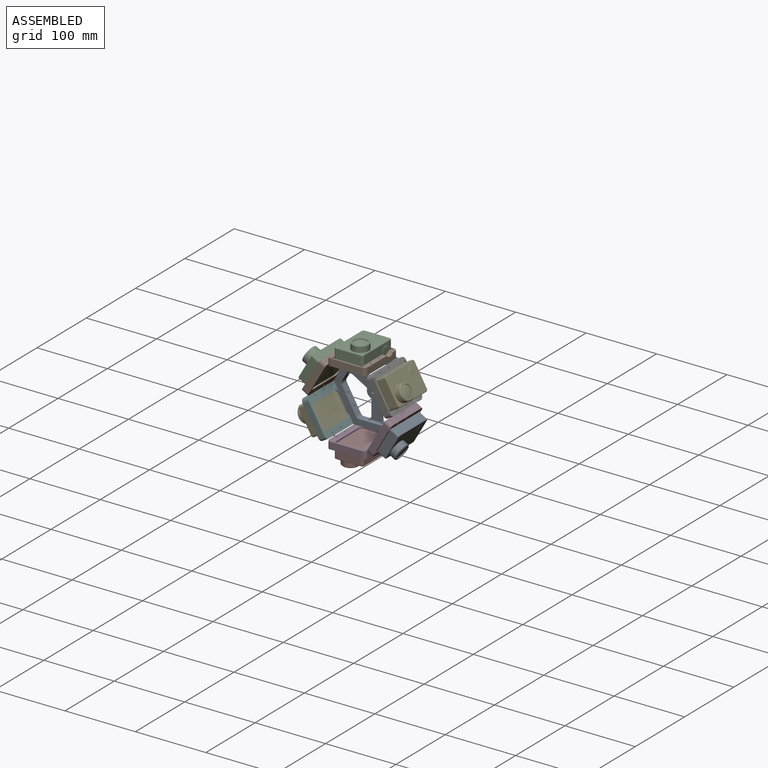
[diagram: assembled view]
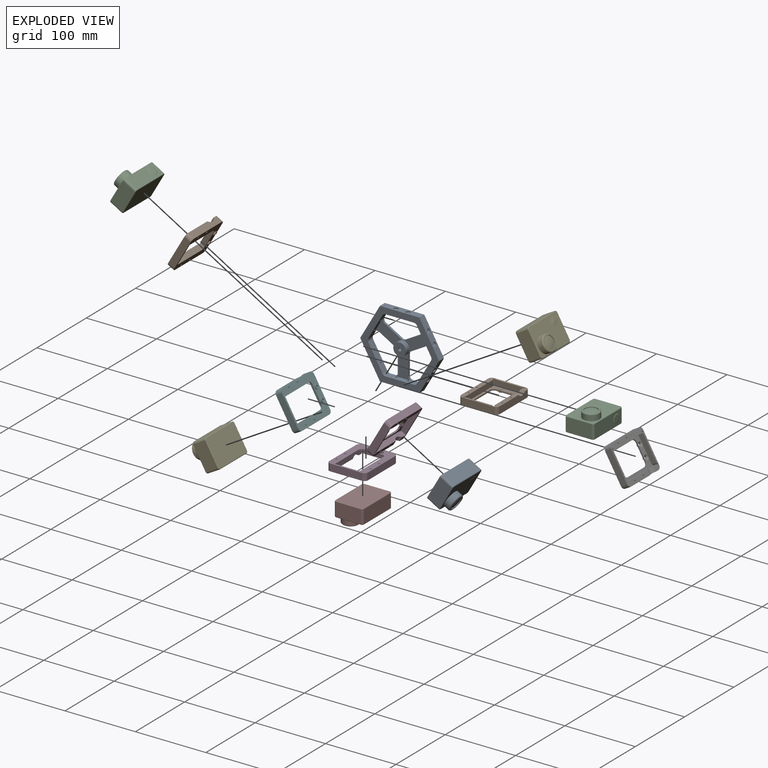
[diagram: exploded view]
GUIDED TOUR — MATED ASSEMBLY (Onshape document 9c38cecef5e9b53f635a4dc5, AutoMate assembly 9c38cecef5e9b53f635a4dc5_227ad06c4d0394dedd1eaec3_ae85a5137a5b2e4cc9e6681c_default)

This assembly has 13 components, labeled P0..P12 below (a component is one placed occurrence of a part; the same part can appear more than once), held together by 12 mates. A mate is a constraint between two components; its type names the relative motion it leaves free:
  FASTENED — locks the two components together rigidly (no relative motion).
Axis/direction vectors are unit vectors and 'through' points are millimeter coordinates, both in the assembly's world frame.

MATES
  1. FASTENED "Fastened 11": P4 <-> P6, direction (-0.866, 0.000, -0.500) through (129.96, 152.46, 191.49) mm
  2. FASTENED "Fastened 8": P10 <-> P1, direction (0.866, 0.000, -0.500) through (42.50, 152.46, 191.49) mm
  3. FASTENED "Fastened 9": P7 <-> P11, direction (0.000, 0.000, 1.000) through (86.23, 152.46, 115.75) mm
  4. FASTENED "Fastened 3": P5 <-> P8, direction (-0.500, 0.000, 0.866) through (44.23, 154.96, 142.00) mm
  5. FASTENED "Fastened 1": P11 <-> P8, direction (-1.000, 0.000, 0.000) through (86.23, 154.96, 117.75) mm
  6. FASTENED "Fastened 10": P0 <-> P3, direction (-0.866, 0.000, 0.500) through (129.96, 152.46, 141.00) mm
  7. FASTENED "Fastened 6": P9 <-> P8, direction (1.000, 0.000, 0.000) through (86.23, 144.96, 214.74) mm
  8. FASTENED "Fastened 5": P6 <-> P8, direction (0.500, 0.000, -0.866) through (128.23, 154.96, 190.49) mm
  9. FASTENED "Fastened 12": P2 <-> P9, direction (-1.000, 0.000, 0.000) through (86.23, 152.46, 216.74) mm
  10. FASTENED "Fastened 2": P3 <-> P8, direction (-0.500, 0.000, -0.866) through (128.23, 154.96, 142.00) mm
  11. FASTENED "Fastened 4": P1 <-> P8, direction (0.500, 0.000, 0.866) through (44.23, 154.96, 190.49) mm
  12. FASTENED "Fastened 7": P12 <-> P5, direction (0.866, 0.000, 0.500) through (42.50, 152.46, 141.00) mm

ASSEMBLY ORDER
  1. P3 — the base component [order verified]
  2. P8 [order verified]
  3. P6 [order verified]
  4. P0 [order verified]
  5. P4 [order verified]
  6. P9 [order verified]
  7. P11 [order verified]
  8. P1 [order verified]
  9. P5 [order verified]
  10. P10 [order verified]
  11. P12 [order verified]
  12. P2 [order verified]
  13. P7 [order verified]
(P1, P5, P6, P9, P11 verified with a relaxed clearance tolerance: the source model stores slight part interference there.)
Order-tag legend:
  [order verified] — this step's position reverses a verified removal order: the component was checked to insert without passing through the ones already placed.

Of the 13 components, 7 carry the full construction recipe — the FeatureScript program that regenerates the part's solid from scratch; the rest are supplied as boundary geometry only.
Because this assembly has more than 12 components, the tour below covers the 12 most significant ones individually (every recipe-attached component first, then the largest by part volume), in assembly order; the remaining 1 are summarized together in a grouped section at the end.
Each toured component is shown spotlighted twice — in the assembled view, then in the exploded view, where a leader line traces a displaced component back to its assembled socket (saturated green if recipe-attached, orange if geometry-only; every other component desaturated gray) — followed by its recipe or geometry summary and the mates that hold it.
NOTE — document 2 of 2 of this assembly tour. The two overview renders and the header above are repeated from document 1; the component sections below continue where the previous document stopped.
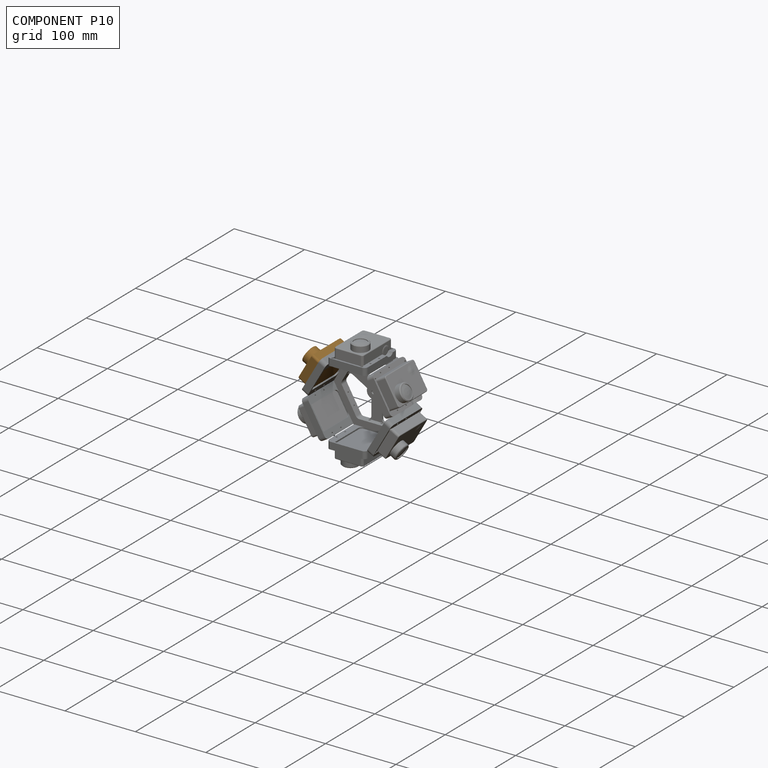
[diagram: component P10 — assembled]
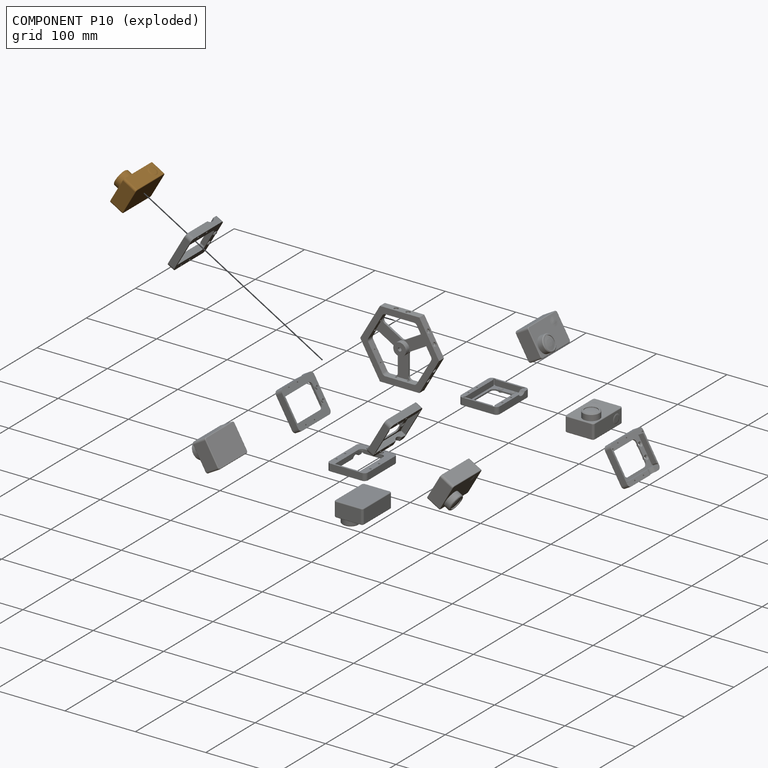
[diagram: component P10 — exploded]
COMPONENT P10 — geometry summary (no construction recipe available for this part):
  bounding box: 59.5 x 41.7 x 30.0 mm
  B-rep topology: 1 solid, 49 faces, 357 edges
  volume: 54277 mm^3 (73% of its bounding box)
Held by: FASTENED mate "Fastened 8" to P1.
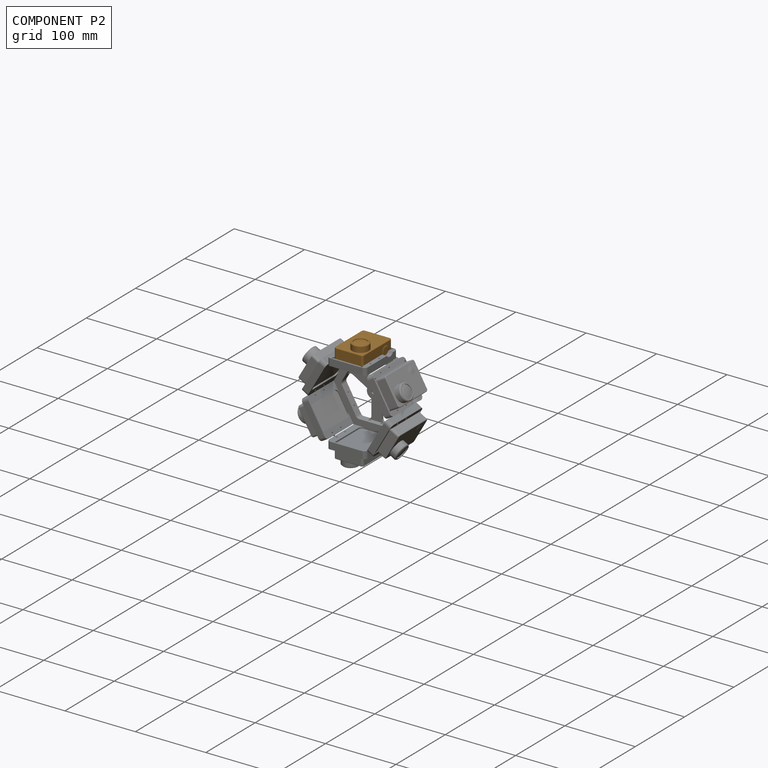
[diagram: component P2 — assembled]
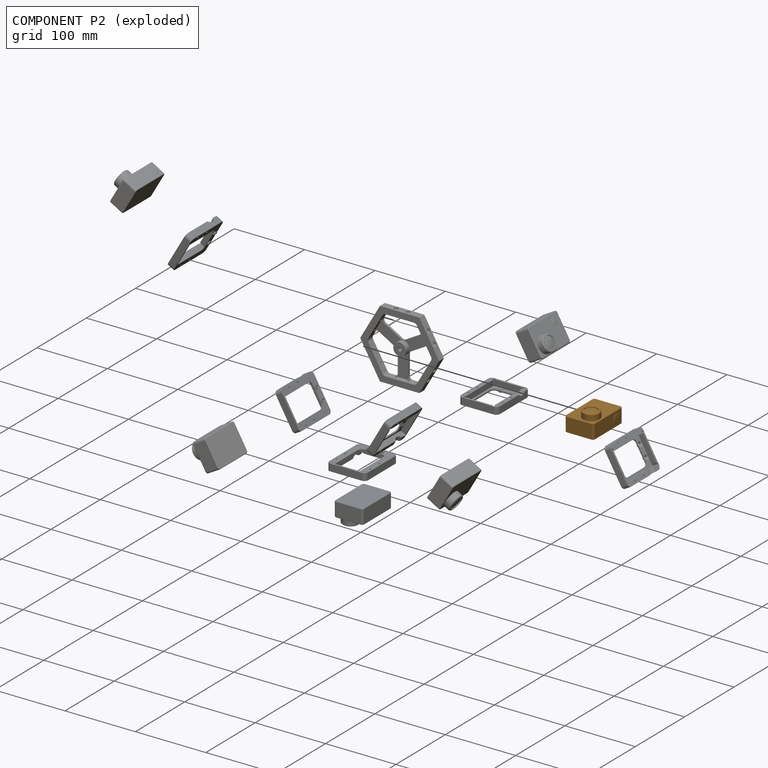
[diagram: component P2 — exploded]
COMPONENT P2 — geometry summary (no construction recipe available for this part):
  bounding box: 59.5 x 41.7 x 30.0 mm
  B-rep topology: 1 solid, 49 faces, 357 edges
  volume: 54277 mm^3 (73% of its bounding box)
Held by: FASTENED mate "Fastened 12" to P9.
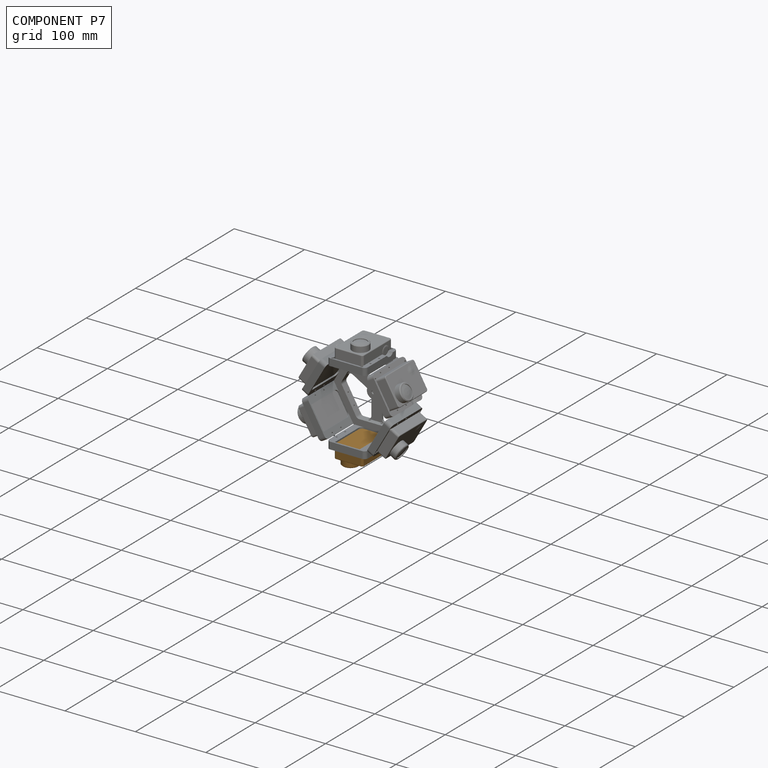
[diagram: component P7 — assembled]
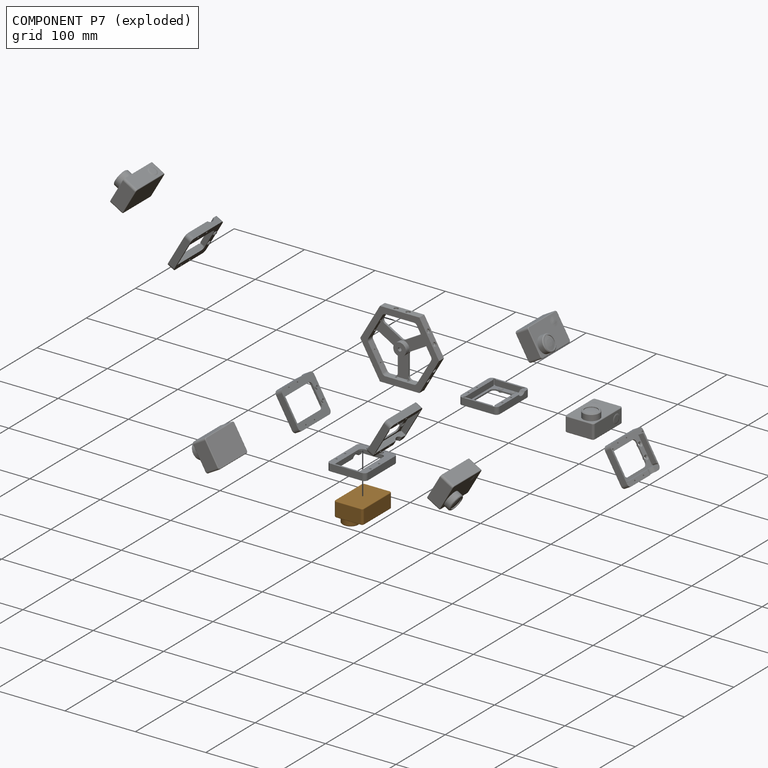
[diagram: component P7 — exploded]
COMPONENT P7 — geometry summary (no construction recipe available for this part):
  bounding box: 59.5 x 41.7 x 30.0 mm
  B-rep topology: 1 solid, 49 faces, 357 edges
  volume: 54277 mm^3 (73% of its bounding box)
Held by: FASTENED mate "Fastened 9" to P11.
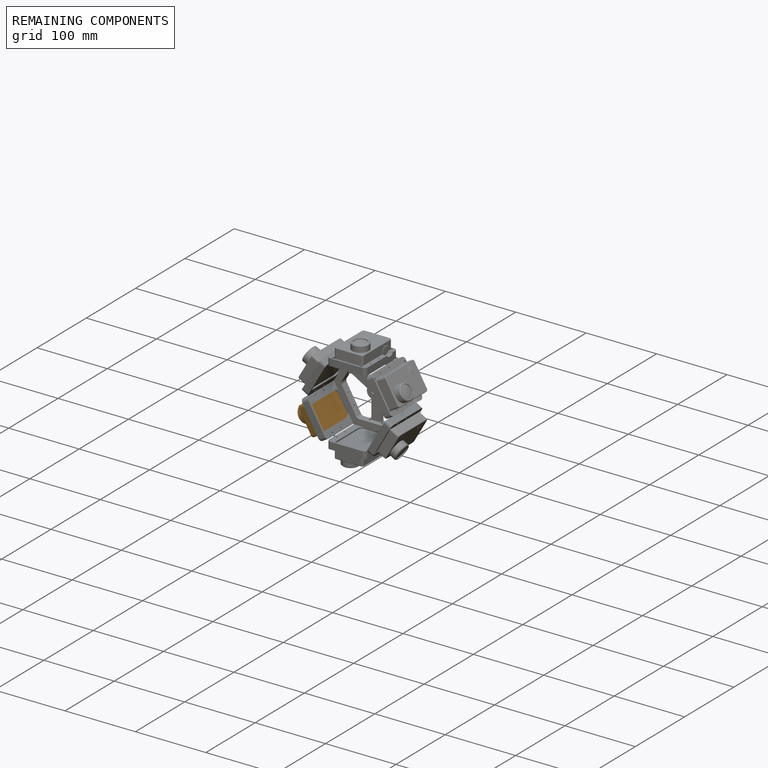
[diagram: remaining components — assembled]
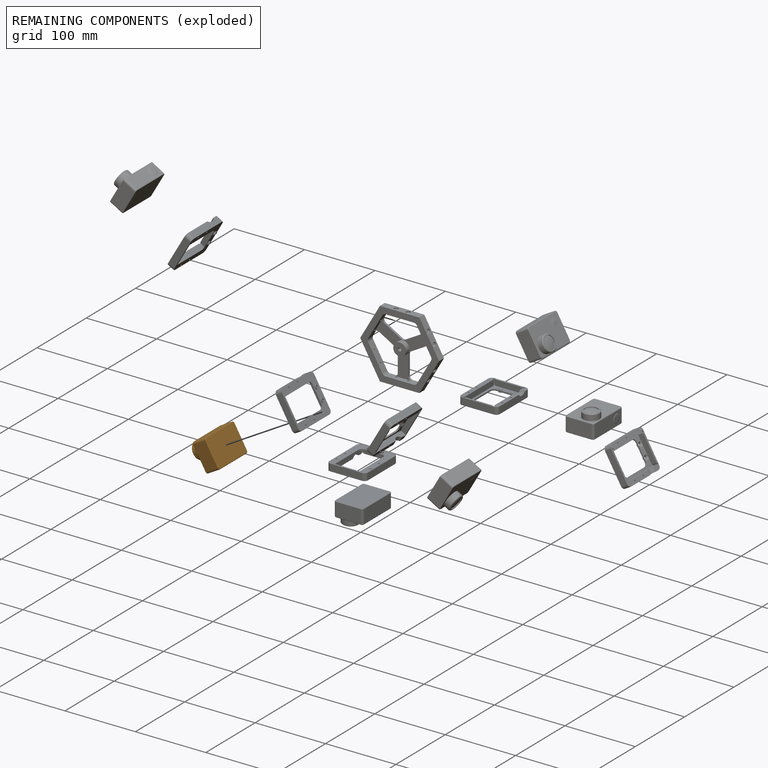
[diagram: remaining components — exploded]
REMAINING COMPONENTS (grouped) — the 1 components below fall outside the per-component tour by the significance rule stated above; both spotlight views highlight the whole group.
  P12: bounding box 59.5 x 41.7 x 30.0 mm, volume 54277 mm^3. Held by: FASTENED mate "Fastened 7" to P5.
PROVENANCE & LICENSES
Assembly (occurrences, transforms, mates, per-part STEP geometry): AutoMate dataset, Zenodo record 7776208, CC0.
Construction recipes: CADFS (HuggingFace VladPyatov/CADFS, CC-BY-4.0, layered over the ABC dataset), FeatureScript reconstruction programs keyed by ABC model id.
Join: ABC meta listings map ABC model id -> Onshape documentId; within a shared document, parts are matched by geometric signature (bounding-box dims + volume at 0.1% relative tolerance, exact B-rep face/solid counts).
Verification: 7 of this assembly's 13 components carry a recipe attachment, and every attachment is mesh-verified: the CADFS STEP and the AutoMate member STEP were compared as meshes in their shared local frame (symmetric sampled-point-to-mesh distance); worst across the 7 attachments: below the mesh-comparison resolution (tessellation chordal tolerance ~0.223 mm) on a 148 mm part.
Renders: orthographic iso camera (az 35 / el 25); the floor grid conveys scale (grid pitch printed in each image; no ruler). In the exploded view each component is displaced by its stored offset vector: the offsets alone carry the explosion direction (mate normal/axis signs are not orientation cues and do not encode it), and separation distances are assigned per mate-chain, not proportionally to assembly-order depth.
